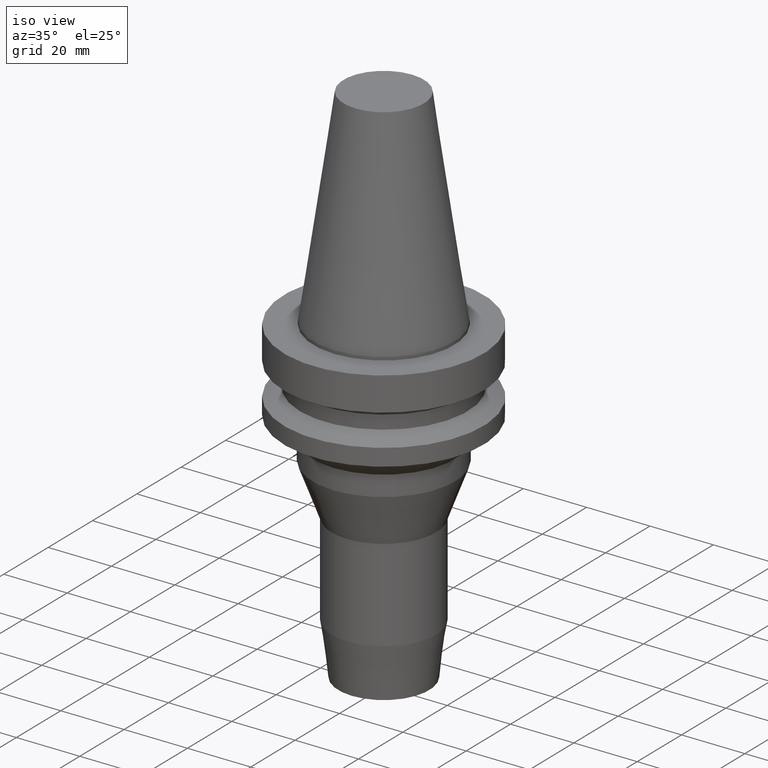
[diagram: clean part render]
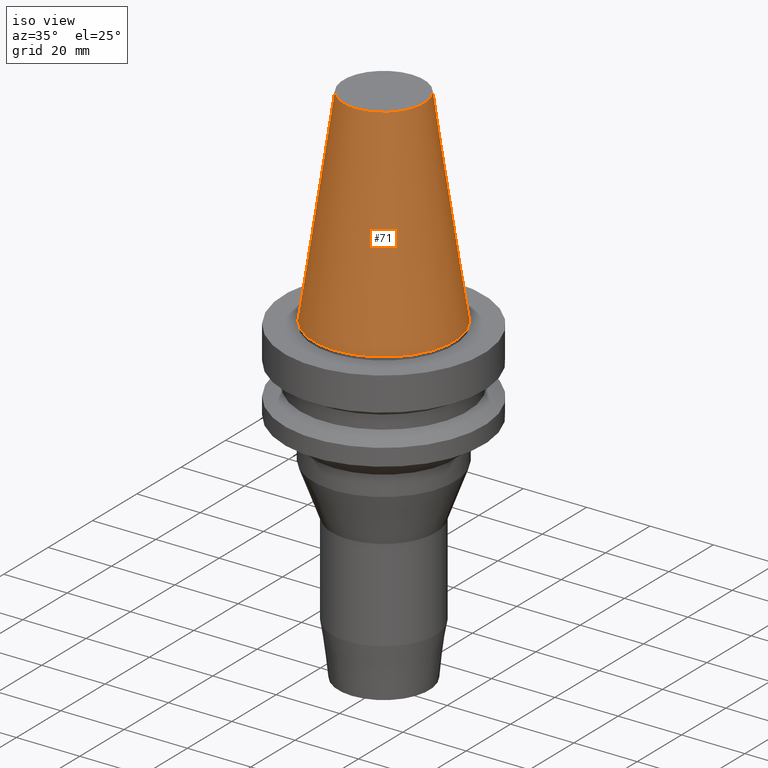
[diagram: same view with one face highlighted and labeled with its STEP entity id]
A machine part, iso view. The second image highlights one B-rep face of the part: STEP entity #71.
In plain terms, the highlighted conical surface has half-angle 8.297 deg.
Its self-contained STEP definition (entity closure, byte-faithful):
#71=ADVANCED_FACE('Unnamed[1]',(#176,#177),#178,.T.);
#73=EDGE_CURVE('Unnamed[1]',#180,#180,#181,.T.);
#121=EDGE_CURVE('Unnamed[1]',#254,#254,#255,.T.);
#176=FACE_BOUND('',#314,.T.);
#177=FACE_BOUND('',#315,.T.);
#178=CONICAL_SURFACE('',#316,17.4562500000001,0.144812498238936);
#180=VERTEX_POINT('',#319);
#181=CIRCLE('',#320,12.6875000000001);
#254=VERTEX_POINT('',#411);
#255=CIRCLE('',#412,22.225);
#314=EDGE_LOOP('',(#469));
#315=EDGE_LOOP('',(#470));
#316=AXIS2_PLACEMENT_3D('',#471,#472,#473);
#319=CARTESIAN_POINT('',(-4.00459503321185E-015,12.6875000000002,65.4000000000001));
#320=AXIS2_PLACEMENT_3D('',#474,#475,#476);
#411=CARTESIAN_POINT('',(1.71319921032766E-029,22.2250000000001,-2.8153873565375E-013));
#412=AXIS2_PLACEMENT_3D('',#555,#556,#557);
#469=ORIENTED_EDGE('',*,*,#121,.F.);
#470=ORIENTED_EDGE('',*,*,#73,.T.);
#471=CARTESIAN_POINT('',(-2.00229751660592E-015,5.86373458283464E-014,32.6999999999999));
#472=DIRECTION('',(6.12323399573677E-017,-5.49881288585022E-016,-1.0));
#473=DIRECTION('',(2.88433652680558E-032,1.0,-5.49881288585022E-016));
#474=CARTESIAN_POINT('',(-4.00459503321185E-015,7.66184639650765E-014,65.4000000000001));
#475=DIRECTION('',(6.12323399573677E-017,-5.49881288585004E-016,-1.0));
#476=DIRECTION('',(2.88433652680606E-032,1.0,-5.49881288585004E-016));
#555=CARTESIAN_POINT('',(1.65331138531142E-029,4.06562276916163E-014,-2.70006239588838E-013));
#556=DIRECTION('',(6.12323399573677E-017,-5.4988128858496E-016,-1.0));
#557=DIRECTION('',(2.88433652680612E-032,1.0,-5.4988128858496E-016));